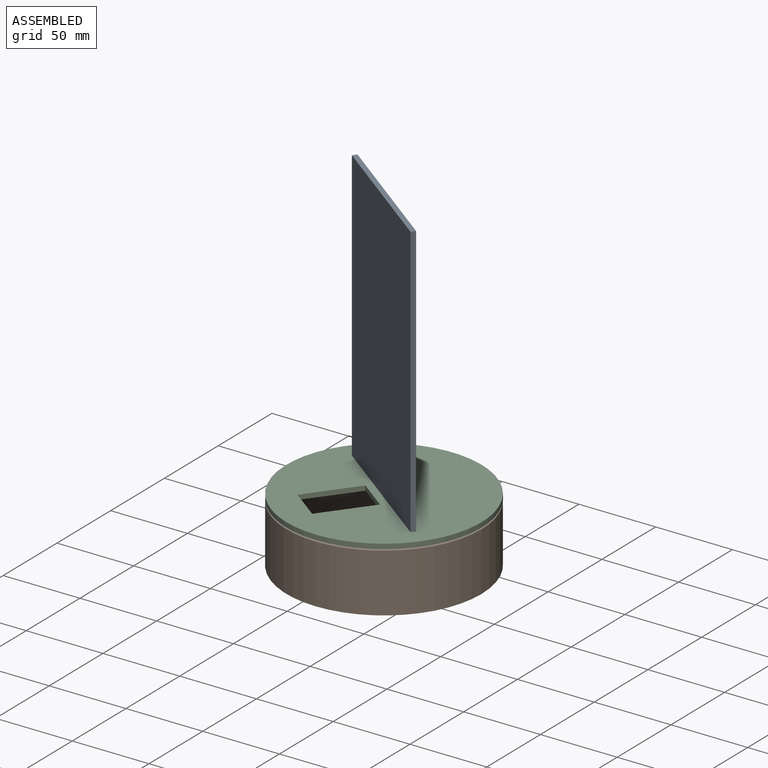
[diagram: assembled view]
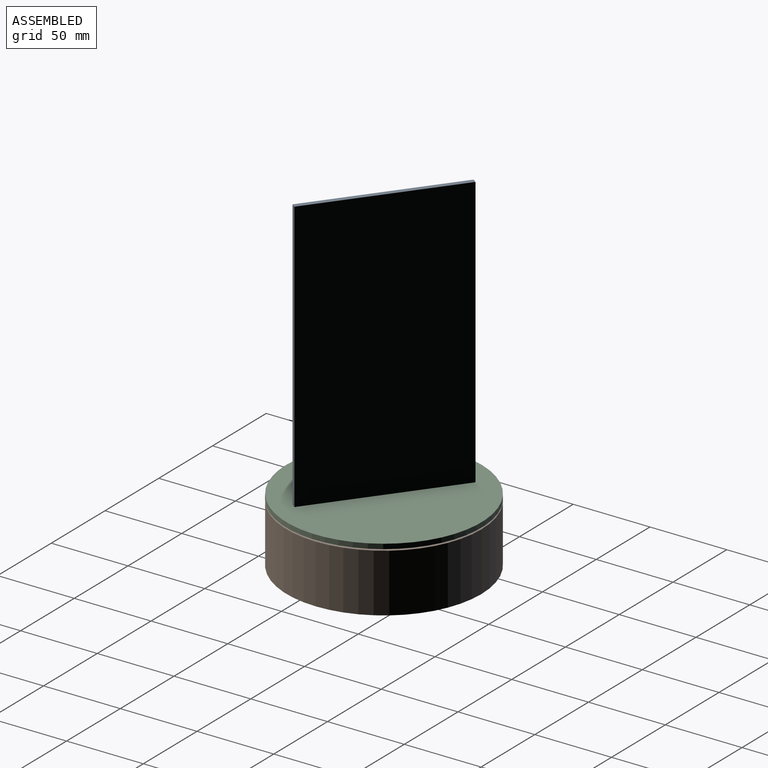
[diagram: assembled view, second angle]
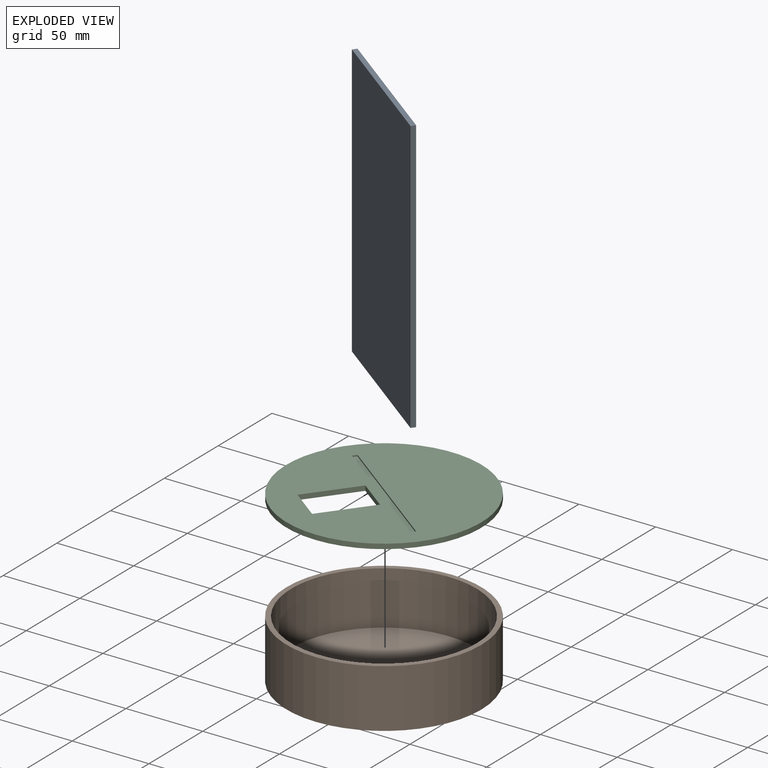
[diagram: exploded view]
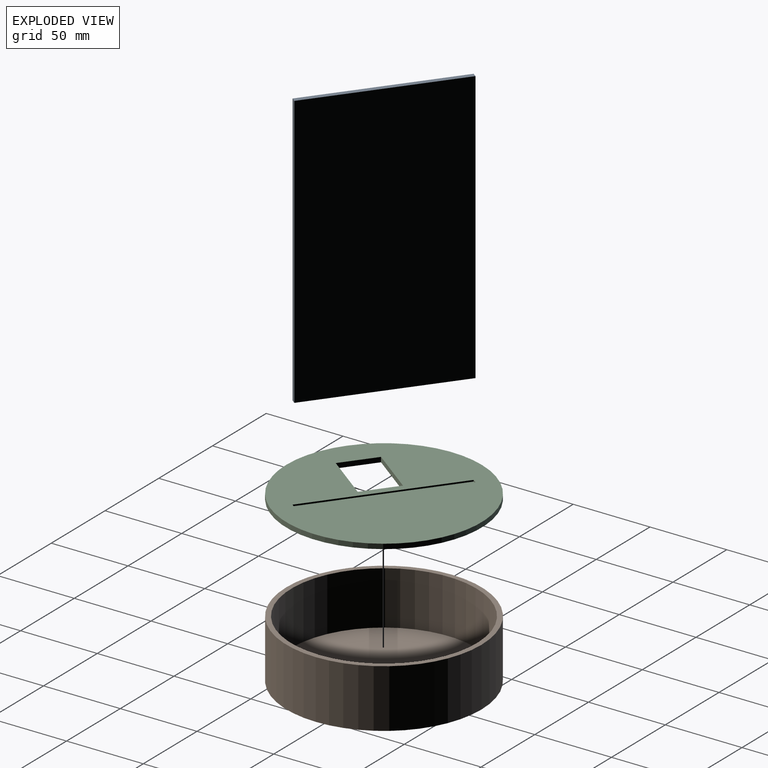
[diagram: exploded view, second angle]
ASSEMBLY  parts=3 mates=2
PART A: 6 faces, bbox 3.2x101.6x177.8 mm
  f0: plane 177.8x3.18mm, normal (0,-1,0), area 564.5mm2, adj f1,f3,f4,f5
  f1: plane 177.8x101.6mm, normal (1,0,0), area 18064.5mm2, adj f0,f2,f4,f5
  f2: plane 177.8x3.18mm, normal (0,1,0), area 564.5mm2, adj f1,f3,f4,f5
  f3: plane 177.8x101.6mm, normal (-1,0,0), area 18064.5mm2, adj f0,f2,f4,f5
  f4: plane 101.6x3.18mm, normal (0,0,1), area 322.6mm2, adj f0,f1,f2,f3
  f5: plane 101.6x3.18mm, normal (0,0,-1), area 322.6mm2, adj f0,f1,f2,f3
PART B: 5 faces, bbox 127x127x38.1 mm
  f0: cylinder r=60.32mm len=120.65mm, axis (0,0,-1), area 13237.7mm2, adj f2,f4
  f1: cylinder r=63.5mm len=127mm, axis (0,0,-1), area 15201.2mm2, adj f2,f3
  f2: plane 127x127mm, normal (0,0,1), area 1235.1mm2, adj f0,f1
  f3: plane 127x127mm, normal (0,0,-1), area 12667.7mm2, adj f1
  f4: plane 120.65x120.65mm, normal (0,0,1), area 11432.6mm2, adj f0
PART C: 12 faces, bbox 127x127x3.2 mm
  f0: plane 127x127mm, normal (0,0,1), area 11377.4mm2, adj f1,f2,f3,f4,f5,f7,f8,f9
  f1: plane 25.4x3.18mm, normal (-1,0,0), area 80.6mm2, adj f0,f2,f4,f6
  f2: plane 38.1x3.18mm, normal (0,1,0), area 121mm2, adj f0,f1,f3,f6
  f3: plane 25.4x3.18mm, normal (1,0,0), area 80.6mm2, adj f0,f2,f4,f6
  f4: plane 38.1x3.18mm, normal (0,-1,0), area 121mm2, adj f0,f1,f3,f6
  f5: cylinder r=63.5mm len=127mm, axis (0,0,-1), area 1266.8mm2, adj f0,f6
  f6: plane 127x127mm, normal (0,0,-1), area 11699.9mm2, adj f1,f2,f3,f4,f5
  f7: plane 101.6x0.95mm, normal (-1,0,0), area 96.8mm2, adj f0,f8,f10,f11
  f8: plane 3.18x0.95mm, normal (0,-1,0), area 3mm2, adj f0,f7,f9,f11
  f9: plane 101.6x0.95mm, normal (1,0,0), area 96.8mm2, adj f0,f8,f10,f11
  f10: plane 3.18x0.95mm, normal (0,1,0), area 3mm2, adj f0,f7,f9,f11
  f11: plane 101.6x3.18mm, normal (0,0,1), area 322.6mm2, adj f7,f8,f9,f10
PLACE A rot(axis=(0,0,-1),127.1deg) t=(-107.4,-72.84,-46.84)mm
PLACE B t=(-52.12,0.33,-88.12)mm fixed
PLACE C rot(axis=(0,0,-1),127.1deg) t=(28.27,106.72,-49.06)mm
MATE fastened A.f5 <-> C.f5  axis (0,0,-1) through (-52.12,0.33,-46.84)mm
MATE revolute C.f5 <-> B.f1  axis (0,0,-1) through (-52.12,0.33,-49.06)mm
